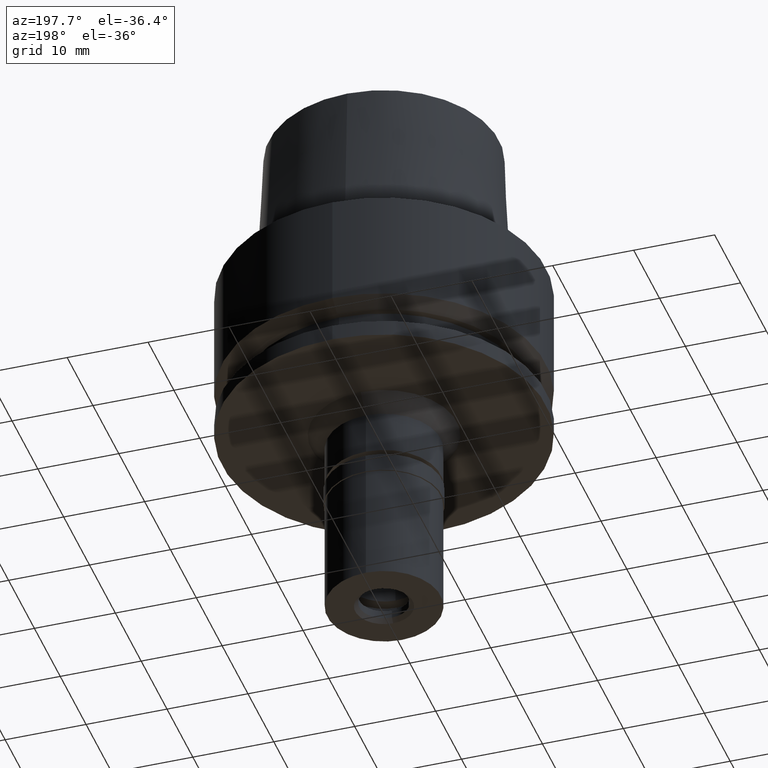
[diagram: clean part render]
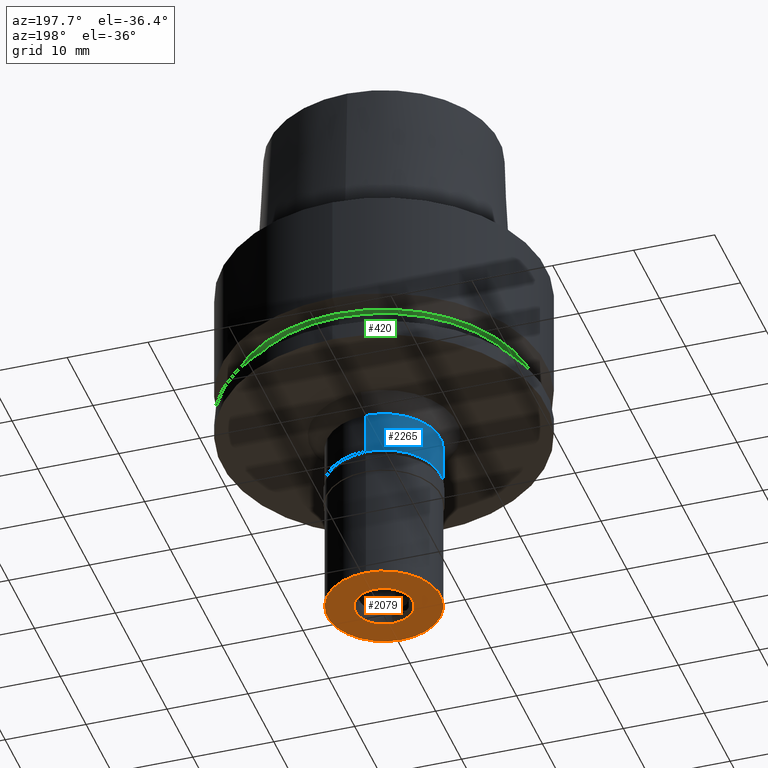
[diagram: same view with three faces highlighted in distinct colors, each labeled with its STEP entity id]
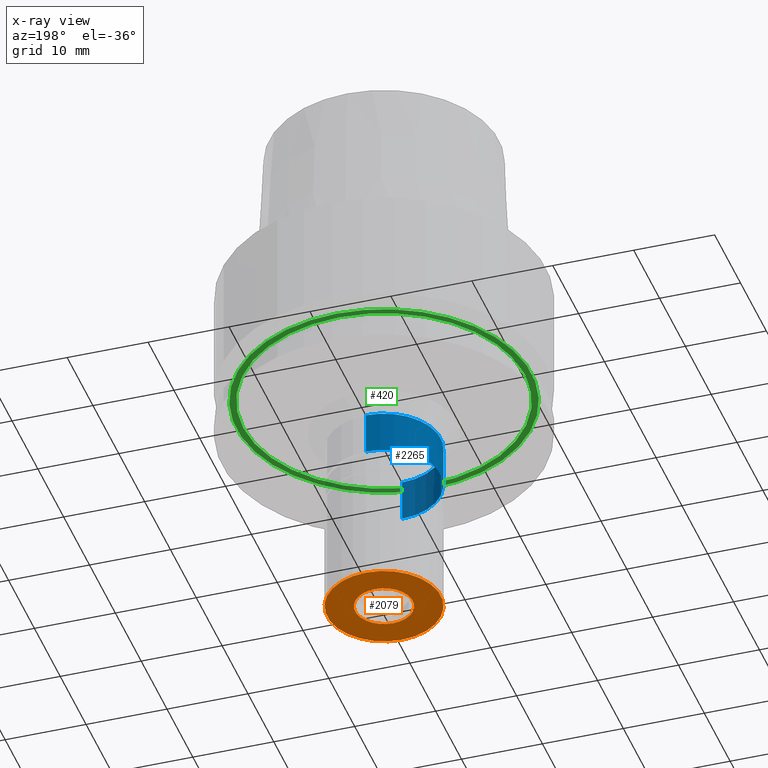
[diagram: x-ray of the same camera — body ghosted, the three highlighted faces saturated]
A machine part, auxiliary view with three faces highlighted in distinct colors.
The next image is the same camera in x-ray (body ghosted, the three faces saturated) — at least one of them is partly hidden behind the body in this view.
Their STEP definitions:

[orange] entity #2079 — the highlighted planar face has unit normal (0, 0, 1).
#14 = DIRECTION ( 'NONE',  ( 0.0000000000000000000, 0.0000000000000000000, 1.000000000000000000 ) ) ;
#43 = CARTESIAN_POINT ( 'NONE',  ( 0.0000000000000000000, 0.0000000000000000000, -17.00000000000000000 ) ) ;
#172 = CARTESIAN_POINT ( 'NONE',  ( 0.0000000000000000000, -3.550000000000000266, -17.00000000000000000 ) ) ;
#241 = CARTESIAN_POINT ( 'NONE',  ( 0.0000000000000000000, 0.0000000000000000000, -17.00000000000000000 ) ) ;
#280 = AXIS2_PLACEMENT_3D ( 'NONE', #43, #14, #1914 ) ;
#378 = ORIENTED_EDGE ( 'NONE', *, *, #2532, .F. ) ;
#450 = DIRECTION ( 'NONE',  ( 1.000000000000000000, 0.0000000000000000000, 0.0000000000000000000 ) ) ;
#503 = DIRECTION ( 'NONE',  ( 0.0000000000000000000, -1.000000000000000000, 0.0000000000000000000 ) ) ;
#656 = CARTESIAN_POINT ( 'NONE',  ( 0.0000000000000000000, 3.550000000000000266, -17.00000000000000000 ) ) ;
#803 = EDGE_LOOP ( 'NONE', ( #378, #1226 ) ) ;
#824 = ORIENTED_EDGE ( 'NONE', *, *, #1698, .F. ) ;
#867 = PLANE ( 'NONE',  #1168 ) ;
#891 = CARTESIAN_POINT ( 'NONE',  ( 0.0000000000000000000, 0.0000000000000000000, -17.00000000000000000 ) ) ;
#956 = DIRECTION ( 'NONE',  ( 0.0000000000000000000, 0.0000000000000000000, 1.000000000000000000 ) ) ;
#1089 = DIRECTION ( 'NONE',  ( 0.0000000000000000000, 0.0000000000000000000, -1.000000000000000000 ) ) ;
#1168 = AXIS2_PLACEMENT_3D ( 'NONE', #1481, #2307, #450 ) ;
#1226 = ORIENTED_EDGE ( 'NONE', *, *, #1555, .F. ) ;
#1316 = ORIENTED_EDGE ( 'NONE', *, *, #1811, .F. ) ;
#1343 = AXIS2_PLACEMENT_3D ( 'NONE', #2177, #956, #1581 ) ;
#1399 = CARTESIAN_POINT ( 'NONE',  ( 0.0000000000000000000, 7.000000000000000000, -17.00000000000000000 ) ) ;
#1413 = VERTEX_POINT ( 'NONE', #172 ) ;
#1465 = CIRCLE ( 'NONE', #280, 7.000000000000000000 ) ;
#1481 = CARTESIAN_POINT ( 'NONE',  ( 0.0000000000000000000, 0.0000000000000000000, -17.00000000000000000 ) ) ;
#1497 = DIRECTION ( 'NONE',  ( 0.0000000000000000000, 1.000000000000000000, 0.0000000000000000000 ) ) ;
#1555 = EDGE_CURVE ( 'NONE', #1413, #1995, #2072, .T. ) ;
#1581 = DIRECTION ( 'NONE',  ( 0.0000000000000000000, -1.000000000000000000, 0.0000000000000000000 ) ) ;
#1604 = EDGE_LOOP ( 'NONE', ( #824, #1316 ) ) ;
#1688 = FACE_OUTER_BOUND ( 'NONE', #1604, .T. ) ;
#1698 = EDGE_CURVE ( 'NONE', #2351, #2392, #1465, .T. ) ;
#1720 = CIRCLE ( 'NONE', #1343, 7.000000000000000000 ) ;
#1724 = CIRCLE ( 'NONE', #2465, 3.550000000000000266 ) ;
#1811 = EDGE_CURVE ( 'NONE', #2392, #2351, #1720, .T. ) ;
#1885 = FACE_BOUND ( 'NONE', #803, .T. ) ;
#1914 = DIRECTION ( 'NONE',  ( 0.0000000000000000000, 1.000000000000000000, 0.0000000000000000000 ) ) ;
#1937 = AXIS2_PLACEMENT_3D ( 'NONE', #891, #2514, #503 ) ;
#1995 = VERTEX_POINT ( 'NONE', #656 ) ;
#2058 = CARTESIAN_POINT ( 'NONE',  ( 0.0000000000000000000, -7.000000000000000000, -17.00000000000000000 ) ) ;
#2072 = CIRCLE ( 'NONE', #1937, 3.550000000000000266 ) ;
#2079 = ADVANCED_FACE ( 'NONE', ( #1688, #1885 ), #867, .F. ) ;
#2177 = CARTESIAN_POINT ( 'NONE',  ( 0.0000000000000000000, 0.0000000000000000000, -17.00000000000000000 ) ) ;
#2307 = DIRECTION ( 'NONE',  ( 0.0000000000000000000, 0.0000000000000000000, 1.000000000000000000 ) ) ;
#2351 = VERTEX_POINT ( 'NONE', #1399 ) ;
#2392 = VERTEX_POINT ( 'NONE', #2058 ) ;
#2465 = AXIS2_PLACEMENT_3D ( 'NONE', #241, #1089, #1497 ) ;
#2514 = DIRECTION ( 'NONE',  ( 0.0000000000000000000, 0.0000000000000000000, -1.000000000000000000 ) ) ;
#2532 = EDGE_CURVE ( 'NONE', #1995, #1413, #1724, .T. ) ;

[blue] entity #2265 — the highlighted cylindrical surface (partial cylindrical patch) has radius 7 mm, axis along (0, 0, 1).
#44 = EDGE_CURVE ( 'NONE', #1153, #1011, #947, .T. ) ;
#194 = CARTESIAN_POINT ( 'NONE',  ( 0.0000000000000000000, 7.000000000000000000, -22.00000000000000000 ) ) ;
#277 = AXIS2_PLACEMENT_3D ( 'NONE', #1559, #2161, #2170 ) ;
#292 = CARTESIAN_POINT ( 'NONE',  ( 0.0000000000000000000, 7.000000000000000000, -22.00000000000000000 ) ) ;
#431 = EDGE_CURVE ( 'NONE', #1011, #2434, #1335, .T. ) ;
#657 = EDGE_CURVE ( 'NONE', #2434, #1730, #1048, .T. ) ;
#668 = CARTESIAN_POINT ( 'NONE',  ( 0.0000000000000000000, -7.000000000000000000, -22.00000000000000000 ) ) ;
#687 = ORIENTED_EDGE ( 'NONE', *, *, #1272, .F. ) ;
#742 = DIRECTION ( 'NONE',  ( 0.0000000000000000000, 0.0000000000000000000, 1.000000000000000000 ) ) ;
#947 = CIRCLE ( 'NONE', #1166, 7.000000000000000000 ) ;
#948 = CYLINDRICAL_SURFACE ( 'NONE', #1648, 7.000000000000000000 ) ;
#1005 = CARTESIAN_POINT ( 'NONE',  ( 0.0000000000000000000, 0.0000000000000000000, -22.00000000000000000 ) ) ;
#1011 = VERTEX_POINT ( 'NONE', #194 ) ;
#1048 = CIRCLE ( 'NONE', #277, 7.000000000000000000 ) ;
#1153 = VERTEX_POINT ( 'NONE', #668 ) ;
#1166 = AXIS2_PLACEMENT_3D ( 'NONE', #1005, #1826, #1395 ) ;
#1272 = EDGE_CURVE ( 'NONE', #1153, #1730, #1988, .T. ) ;
#1335 = LINE ( 'NONE', #292, #1344 ) ;
#1344 = VECTOR ( 'NONE', #1362, 1000.000000000000000 ) ;
#1358 = ORIENTED_EDGE ( 'NONE', *, *, #431, .T. ) ;
#1362 = DIRECTION ( 'NONE',  ( 0.0000000000000000000, 0.0000000000000000000, -1.000000000000000000 ) ) ;
#1395 = DIRECTION ( 'NONE',  ( 0.0000000000000000000, -1.000000000000000000, 0.0000000000000000000 ) ) ;
#1401 = ORIENTED_EDGE ( 'NONE', *, *, #44, .T. ) ;
#1552 = CARTESIAN_POINT ( 'NONE',  ( 0.0000000000000000000, -7.000000000000000000, -22.00000000000000000 ) ) ;
#1559 = CARTESIAN_POINT ( 'NONE',  ( 0.0000000000000000000, 0.0000000000000000000, -27.30000000000000071 ) ) ;
#1565 = DIRECTION ( 'NONE',  ( 0.0000000000000000000, 0.0000000000000000000, -1.000000000000000000 ) ) ;
#1648 = AXIS2_PLACEMENT_3D ( 'NONE', #2592, #742, #1768 ) ;
#1691 = CARTESIAN_POINT ( 'NONE',  ( 0.0000000000000000000, 7.000000000000000000, -27.30000000000000071 ) ) ;
#1730 = VERTEX_POINT ( 'NONE', #2212 ) ;
#1768 = DIRECTION ( 'NONE',  ( 0.0000000000000000000, 1.000000000000000000, 0.0000000000000000000 ) ) ;
#1826 = DIRECTION ( 'NONE',  ( 0.0000000000000000000, 0.0000000000000000000, -1.000000000000000000 ) ) ;
#1973 = FACE_OUTER_BOUND ( 'NONE', #2316, .T. ) ;
#1988 = LINE ( 'NONE', #1552, #2071 ) ;
#2071 = VECTOR ( 'NONE', #1565, 1000.000000000000000 ) ;
#2161 = DIRECTION ( 'NONE',  ( 0.0000000000000000000, 0.0000000000000000000, 1.000000000000000000 ) ) ;
#2170 = DIRECTION ( 'NONE',  ( 0.0000000000000000000, 1.000000000000000000, 0.0000000000000000000 ) ) ;
#2212 = CARTESIAN_POINT ( 'NONE',  ( 0.0000000000000000000, -7.000000000000000000, -27.30000000000000071 ) ) ;
#2265 = ADVANCED_FACE ( 'NONE', ( #1973 ), #948, .T. ) ;
#2316 = EDGE_LOOP ( 'NONE', ( #2362, #687, #1401, #1358 ) ) ;
#2362 = ORIENTED_EDGE ( 'NONE', *, *, #657, .T. ) ;
#2434 = VERTEX_POINT ( 'NONE', #1691 ) ;
#2592 = CARTESIAN_POINT ( 'NONE',  ( 0.0000000000000000000, 0.0000000000000000000, -44.04999999999999716 ) ) ;

[green] entity #420 — the highlighted planar face has unit normal (0, 0, 1).
#70 = DIRECTION ( 'NONE',  ( 0.0000000000000000000, 0.0000000000000000000, 1.000000000000000000 ) ) ;
#111 = DIRECTION ( 'NONE',  ( 0.0000000000000000000, 0.0000000000000000000, 1.000000000000000000 ) ) ;
#149 = CARTESIAN_POINT ( 'NONE',  ( 0.0000000000000000000, -17.39999999999999858, -15.00000000000000000 ) ) ;
#271 = VERTEX_POINT ( 'NONE', #1100 ) ;
#420 = ADVANCED_FACE ( 'NONE', ( #1564, #2383 ), #1578, .F. ) ;
#443 = CARTESIAN_POINT ( 'NONE',  ( 0.0000000000000000000, 17.39999999999999858, -15.00000000000000000 ) ) ;
#501 = DIRECTION ( 'NONE',  ( 0.0000000000000000000, 0.0000000000000000000, 1.000000000000000000 ) ) ;
#515 = DIRECTION ( 'NONE',  ( 0.0000000000000000000, -1.000000000000000000, 0.0000000000000000000 ) ) ;
#583 = VERTEX_POINT ( 'NONE', #2507 ) ;
#614 = ORIENTED_EDGE ( 'NONE', *, *, #1774, .F. ) ;
#724 = AXIS2_PLACEMENT_3D ( 'NONE', #926, #111, #515 ) ;
#825 = AXIS2_PLACEMENT_3D ( 'NONE', #1960, #1405, #944 ) ;
#830 = EDGE_CURVE ( 'NONE', #915, #2505, #1253, .T. ) ;
#915 = VERTEX_POINT ( 'NONE', #149 ) ;
#926 = CARTESIAN_POINT ( 'NONE',  ( 0.0000000000000000000, 0.0000000000000000000, -15.00000000000000000 ) ) ;
#942 = DIRECTION ( 'NONE',  ( 0.0000000000000000000, 1.000000000000000000, 0.0000000000000000000 ) ) ;
#944 = DIRECTION ( 'NONE',  ( 0.0000000000000000000, 1.000000000000000000, 0.0000000000000000000 ) ) ;
#1058 = EDGE_LOOP ( 'NONE', ( #1453, #2579 ) ) ;
#1083 = CIRCLE ( 'NONE', #825, 17.39999999999999858 ) ;
#1100 = CARTESIAN_POINT ( 'NONE',  ( 0.0000000000000000000, 18.23205080331999994, -15.00000000000000000 ) ) ;
#1159 = CARTESIAN_POINT ( 'NONE',  ( 0.0000000000000000000, 0.0000000000000000000, -15.00000000000000000 ) ) ;
#1253 = CIRCLE ( 'NONE', #2417, 17.39999999999999858 ) ;
#1405 = DIRECTION ( 'NONE',  ( 0.0000000000000000000, 0.0000000000000000000, -1.000000000000000000 ) ) ;
#1438 = ORIENTED_EDGE ( 'NONE', *, *, #830, .F. ) ;
#1453 = ORIENTED_EDGE ( 'NONE', *, *, #2618, .F. ) ;
#1510 = AXIS2_PLACEMENT_3D ( 'NONE', #1159, #501, #1526 ) ;
#1526 = DIRECTION ( 'NONE',  ( 1.000000000000000000, 0.0000000000000000000, 0.0000000000000000000 ) ) ;
#1538 = CARTESIAN_POINT ( 'NONE',  ( 0.0000000000000000000, 0.0000000000000000000, -15.00000000000000000 ) ) ;
#1564 = FACE_OUTER_BOUND ( 'NONE', #1058, .T. ) ;
#1578 = PLANE ( 'NONE',  #1510 ) ;
#1774 = EDGE_CURVE ( 'NONE', #2505, #915, #1083, .T. ) ;
#1783 = DIRECTION ( 'NONE',  ( 0.0000000000000000000, 0.0000000000000000000, -1.000000000000000000 ) ) ;
#1960 = CARTESIAN_POINT ( 'NONE',  ( 0.0000000000000000000, 0.0000000000000000000, -15.00000000000000000 ) ) ;
#1989 = CIRCLE ( 'NONE', #724, 18.23205080331999994 ) ;
#1992 = AXIS2_PLACEMENT_3D ( 'NONE', #1538, #70, #942 ) ;
#2133 = EDGE_CURVE ( 'NONE', #583, #271, #1989, .T. ) ;
#2199 = CIRCLE ( 'NONE', #1992, 18.23205080331999994 ) ;
#2204 = CARTESIAN_POINT ( 'NONE',  ( 0.0000000000000000000, 0.0000000000000000000, -15.00000000000000000 ) ) ;
#2383 = FACE_BOUND ( 'NONE', #2482, .T. ) ;
#2405 = DIRECTION ( 'NONE',  ( 0.0000000000000000000, -1.000000000000000000, 0.0000000000000000000 ) ) ;
#2417 = AXIS2_PLACEMENT_3D ( 'NONE', #2204, #1783, #2405 ) ;
#2482 = EDGE_LOOP ( 'NONE', ( #614, #1438 ) ) ;
#2505 = VERTEX_POINT ( 'NONE', #443 ) ;
#2507 = CARTESIAN_POINT ( 'NONE',  ( 0.0000000000000000000, -18.23205080331999994, -15.00000000000000000 ) ) ;
#2579 = ORIENTED_EDGE ( 'NONE', *, *, #2133, .F. ) ;
#2618 = EDGE_CURVE ( 'NONE', #271, #583, #2199, .T. ) ;